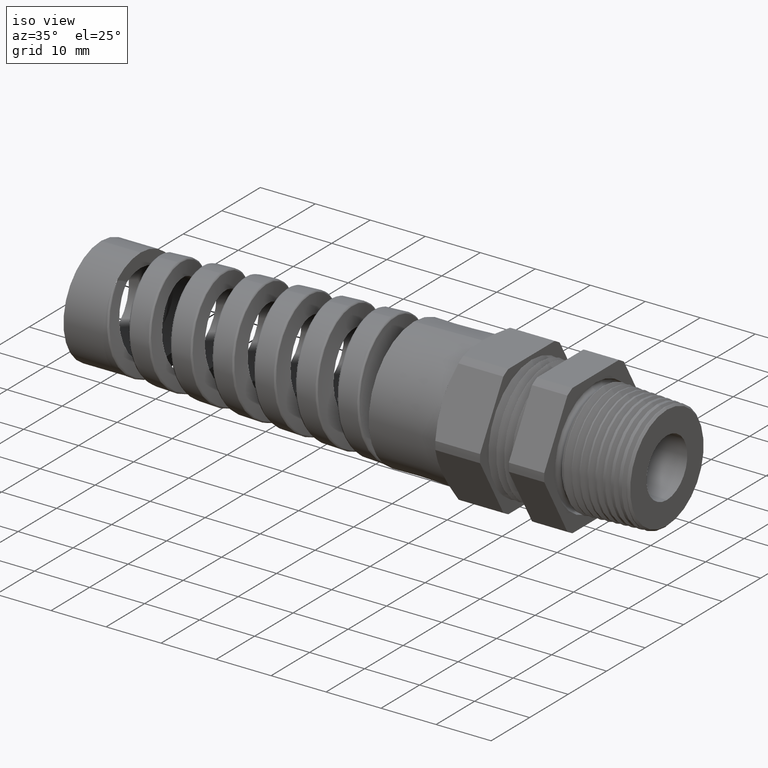
[diagram: clean part render]
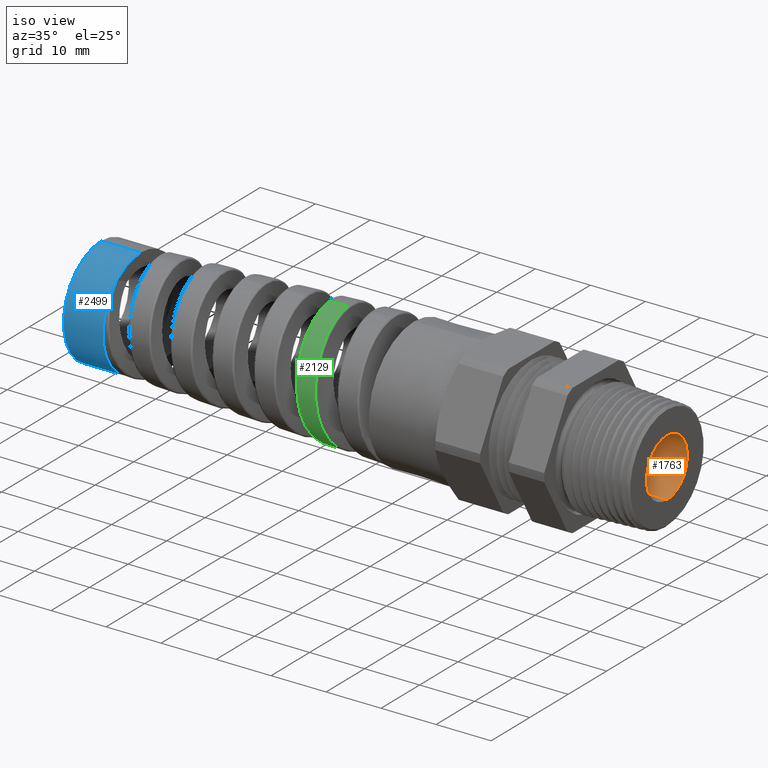
[diagram: same view with three faces highlighted in distinct colors, each labeled with its STEP entity id]
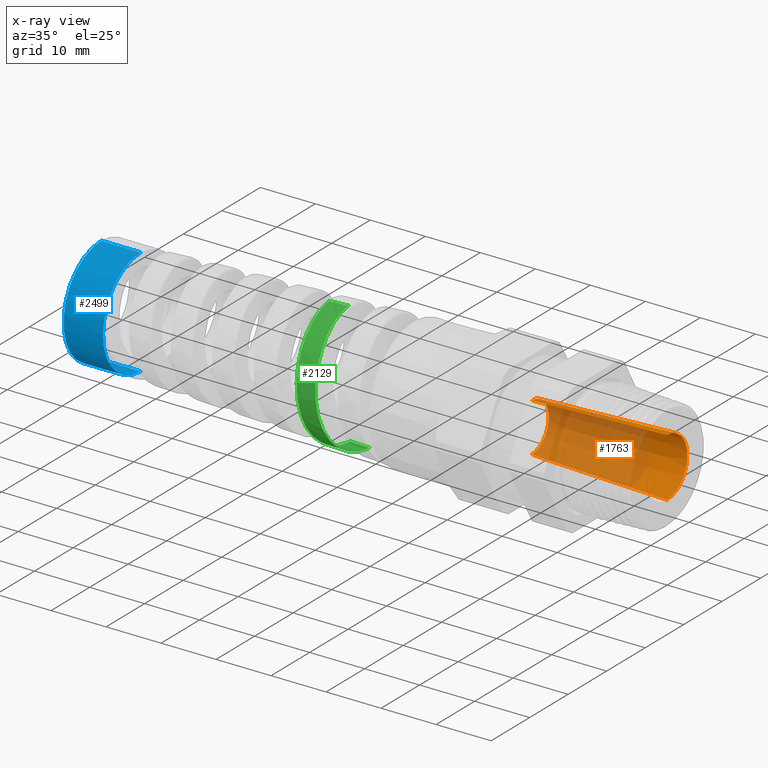
[diagram: x-ray of the same camera — body ghosted, the three highlighted faces saturated]
A machine part, iso view with three faces highlighted in distinct colors.
The next image is the same camera in x-ray (body ghosted, the three faces saturated) — at least one of them is partly hidden behind the body in this view.
Their STEP definitions:

[orange] entity #1763 — the highlighted conical surface has half-angle 2 deg.
#1253 = VERTEX_POINT ( 'NONE', #8768 ) ;
#1254 = VERTEX_POINT ( 'NONE', #8767 ) ;
#1267 = EDGE_CURVE ( 'NONE', #1442, #1253, #8779, .T. ) ;
#1425 = EDGE_CURVE ( 'NONE', #1455, #1254, #9066, .T. ) ;
#1442 = VERTEX_POINT ( 'NONE', #9149 ) ;
#1455 = VERTEX_POINT ( 'NONE', #9193 ) ;
#1756 = EDGE_LOOP ( 'NONE', ( #1761, #1796, #1795, #1791 ) ) ;
#1761 = ORIENTED_EDGE ( 'NONE', *, *, #1425, .F. ) ;
#1763 = ADVANCED_FACE ( 'NONE', ( #9733 ), #9731, .F. ) ;
#1769 = EDGE_CURVE ( 'NONE', #1254, #1253, #9714, .T. ) ;
#1791 = ORIENTED_EDGE ( 'NONE', *, *, #1769, .F. ) ;
#1794 = EDGE_CURVE ( 'NONE', #1455, #1442, #9809, .T. ) ;
#1795 = ORIENTED_EDGE ( 'NONE', *, *, #1267, .T. ) ;
#1796 = ORIENTED_EDGE ( 'NONE', *, *, #1794, .T. ) ;
#8767 = CARTESIAN_POINT ( 'NONE',  ( 0.5100000000000000100, 2.557601921680126100E-017, 0.2088440457657528600 ) ) ;
#8768 = CARTESIAN_POINT ( 'NONE',  ( 0.5100000000000000100, 0.0000000000000000000, -0.2088440457657528600 ) ) ;
#8776 = DIRECTION ( 'NONE',  ( 0.9993908270190957600, 0.0000000000000000000, -0.03489949670250170500 ) ) ;
#8777 = VECTOR ( 'NONE', #8776, 39.37007874015748900 ) ;
#8778 = CARTESIAN_POINT ( 'NONE',  ( -0.4591666666666666700, 0.0000000000000000000, -0.1749999999999999900 ) ) ;
#8779 = LINE ( 'NONE', #8778, #8777 ) ;
#9059 = DIRECTION ( 'NONE',  ( 0.9993908270190957600, 4.273955692857231900E-018, 0.03489949670250170500 ) ) ;
#9060 = VECTOR ( 'NONE', #9059, 39.37007874015748900 ) ;
#9061 = CARTESIAN_POINT ( 'NONE',  ( -0.4591666666666666700, 2.143131898507868000E-017, 0.1749999999999999900 ) ) ;
#9066 = LINE ( 'NONE', #9061, #9060 ) ;
#9149 = CARTESIAN_POINT ( 'NONE',  ( -0.4591666666666666700, 0.0000000000000000000, -0.1749999999999999900 ) ) ;
#9193 = CARTESIAN_POINT ( 'NONE',  ( -0.4591666666666666700, 2.350366910093997000E-017, 0.1749999999999999900 ) ) ;
#9713 = AXIS2_PLACEMENT_3D ( 'NONE', #9777, #9776, #9775 ) ;
#9714 = CIRCLE ( 'NONE', #9713, 0.2088440457657528600 ) ;
#9727 = DIRECTION ( 'NONE',  ( 0.0000000000000000000, 0.0000000000000000000, -1.000000000000000000 ) ) ;
#9728 = DIRECTION ( 'NONE',  ( 1.000000000000000000, 0.0000000000000000000, 0.0000000000000000000 ) ) ;
#9729 = CARTESIAN_POINT ( 'NONE',  ( -0.4591666666666666700, 0.0000000000000000000, 0.0000000000000000000 ) ) ;
#9730 = AXIS2_PLACEMENT_3D ( 'NONE', #9729, #9728, #9727 ) ;
#9731 = CONICAL_SURFACE ( 'NONE', #9730, 0.1749999999999999900, 0.03490658503988732600 ) ;
#9733 = FACE_OUTER_BOUND ( 'NONE', #1756, .T. ) ;
#9775 = DIRECTION ( 'NONE',  ( 0.0000000000000000000, 0.0000000000000000000, 1.000000000000000000 ) ) ;
#9776 = DIRECTION ( 'NONE',  ( -1.000000000000000000, 0.0000000000000000000, 0.0000000000000000000 ) ) ;
#9777 = CARTESIAN_POINT ( 'NONE',  ( 0.5100000000000000100, 0.0000000000000000000, 0.0000000000000000000 ) ) ;
#9802 = DIRECTION ( 'NONE',  ( 0.0000000000000000000, 0.0000000000000000000, 1.000000000000000000 ) ) ;
#9803 = DIRECTION ( 'NONE',  ( -1.000000000000000000, 0.0000000000000000000, 0.0000000000000000000 ) ) ;
#9804 = CARTESIAN_POINT ( 'NONE',  ( -0.4591666666666666700, 0.0000000000000000000, 0.0000000000000000000 ) ) ;
#9805 = AXIS2_PLACEMENT_3D ( 'NONE', #9804, #9803, #9802 ) ;
#9809 = CIRCLE ( 'NONE', #9805, 0.1749999999999999900 ) ;

[blue] entity #2499 — the highlighted cylindrical surface (partial cylindrical patch) has radius 9.7693 mm, axis along (1, 0, 0).
#1492 = VERTEX_POINT ( 'NONE', #9328 ) ;
#1496 = VERTEX_POINT ( 'NONE', #9327 ) ;
#1498 = EDGE_CURVE ( 'NONE', #1517, #1496, #9326, .T. ) ;
#1512 = EDGE_CURVE ( 'NONE', #1492, #1513, #9364, .T. ) ;
#1513 = VERTEX_POINT ( 'NONE', #9360 ) ;
#1517 = VERTEX_POINT ( 'NONE', #9358 ) ;
#2485 = EDGE_CURVE ( 'NONE', #7426, #1496, #11775, .T. ) ;
#2497 = ORIENTED_EDGE ( 'NONE', *, *, #1498, .F. ) ;
#2499 = ADVANCED_FACE ( 'NONE', ( #11810 ), #11809, .T. ) ;
#2501 = EDGE_LOOP ( 'NONE', ( #2497, #2541, #2540, #2529, #2533 ) ) ;
#2505 = EDGE_CURVE ( 'NONE', #1492, #1517, #11859, .T. ) ;
#2529 = ORIENTED_EDGE ( 'NONE', *, *, #7443, .F. ) ;
#2533 = ORIENTED_EDGE ( 'NONE', *, *, #2485, .T. ) ;
#2540 = ORIENTED_EDGE ( 'NONE', *, *, #1512, .T. ) ;
#2541 = ORIENTED_EDGE ( 'NONE', *, *, #2505, .F. ) ;
#5664 = CARTESIAN_POINT ( 'NONE',  ( -3.256800000000000100, -0.2988133339120769300, 0.2421588570577778400 ) ) ;
#5691 = DIRECTION ( 'NONE',  ( 0.0000000000000000000, 0.0000000000000000000, -1.000000000000000000 ) ) ;
#5692 = DIRECTION ( 'NONE',  ( 1.000000000000000000, 0.0000000000000000000, 0.0000000000000000000 ) ) ;
#5693 = CARTESIAN_POINT ( 'NONE',  ( -3.256800000000000100, 0.0000000000000000000, 0.0000000000000000000 ) ) ;
#5694 = AXIS2_PLACEMENT_3D ( 'NONE', #5693, #5692, #5691 ) ;
#5695 = CIRCLE ( 'NONE', #5694, 0.3846171090515572200 ) ;
#7426 = VERTEX_POINT ( 'NONE', #5664 ) ;
#7443 = EDGE_CURVE ( 'NONE', #7426, #1513, #5695, .T. ) ;
#9318 = DIRECTION ( 'NONE',  ( 1.000000000000000000, 0.0000000000000000000, 0.0000000000000000000 ) ) ;
#9319 = VECTOR ( 'NONE', #9318, 39.37007874015748100 ) ;
#9320 = CARTESIAN_POINT ( 'NONE',  ( -3.540000000000000000, 4.710201114973015700E-017, 0.3846171090515601000 ) ) ;
#9326 = LINE ( 'NONE', #9320, #9319 ) ;
#9327 = CARTESIAN_POINT ( 'NONE',  ( -3.256800000000000100, 4.710201114973015700E-017, 0.3846171090515601000 ) ) ;
#9328 = CARTESIAN_POINT ( 'NONE',  ( -3.540000000000000000, 0.0000000000000000000, -0.3846171090515601000 ) ) ;
#9358 = CARTESIAN_POINT ( 'NONE',  ( -3.540000000000000000, 4.710201114973015700E-017, 0.3846171090515601000 ) ) ;
#9360 = CARTESIAN_POINT ( 'NONE',  ( -3.256800000000000100, 0.0000000000000000000, -0.3846171090515572200 ) ) ;
#9361 = DIRECTION ( 'NONE',  ( 1.000000000000000000, 0.0000000000000000000, 0.0000000000000000000 ) ) ;
#9362 = VECTOR ( 'NONE', #9361, 39.37007874015748100 ) ;
#9363 = CARTESIAN_POINT ( 'NONE',  ( -3.540000000000000000, 0.0000000000000000000, -0.3846171090515601000 ) ) ;
#9364 = LINE ( 'NONE', #9363, #9362 ) ;
#11775 = CIRCLE ( 'NONE', #11843, 0.3846171090515601000 ) ;
#11809 = CYLINDRICAL_SURFACE ( 'NONE', #11874, 0.3846171090515601000 ) ;
#11810 = FACE_OUTER_BOUND ( 'NONE', #2501, .T. ) ;
#11840 = DIRECTION ( 'NONE',  ( 0.0000000000000000000, 0.0000000000000000000, 1.000000000000000000 ) ) ;
#11841 = DIRECTION ( 'NONE',  ( -1.000000000000000000, 0.0000000000000000000, 0.0000000000000000000 ) ) ;
#11842 = CARTESIAN_POINT ( 'NONE',  ( -3.256800000000000100, 0.0000000000000000000, 0.0000000000000000000 ) ) ;
#11843 = AXIS2_PLACEMENT_3D ( 'NONE', #11842, #11841, #11840 ) ;
#11855 = DIRECTION ( 'NONE',  ( 0.0000000000000000000, 0.0000000000000000000, 1.000000000000000000 ) ) ;
#11856 = DIRECTION ( 'NONE',  ( -1.000000000000000000, 0.0000000000000000000, 0.0000000000000000000 ) ) ;
#11857 = CARTESIAN_POINT ( 'NONE',  ( -3.540000000000000000, 0.0000000000000000000, 0.0000000000000000000 ) ) ;
#11858 = AXIS2_PLACEMENT_3D ( 'NONE', #11857, #11856, #11855 ) ;
#11859 = CIRCLE ( 'NONE', #11858, 0.3846171090515601000 ) ;
#11871 = DIRECTION ( 'NONE',  ( 0.0000000000000000000, 0.0000000000000000000, -1.000000000000000000 ) ) ;
#11872 = DIRECTION ( 'NONE',  ( 1.000000000000000000, 0.0000000000000000000, 0.0000000000000000000 ) ) ;
#11873 = CARTESIAN_POINT ( 'NONE',  ( -3.540000000000000000, 0.0000000000000000000, 0.0000000000000000000 ) ) ;
#11874 = AXIS2_PLACEMENT_3D ( 'NONE', #11873, #11872, #11871 ) ;

[green] entity #2129 — the highlighted conical surface has half-angle 2.001 deg.
#1783 = EDGE_LOOP ( 'NONE', ( #2210, #2203, #1974, #1981 ) ) ;
#1974 = ORIENTED_EDGE ( 'NONE', *, *, #7216, .T. ) ;
#1981 = ORIENTED_EDGE ( 'NONE', *, *, #2201, .T. ) ;
#2129 = ADVANCED_FACE ( 'NONE', ( #10011 ), #10035, .T. ) ;
#2199 = EDGE_CURVE ( 'NONE', #10084, #7213, #10359, .T. ) ;
#2201 = EDGE_CURVE ( 'NONE', #7226, #9128, #10394, .T. ) ;
#2203 = ORIENTED_EDGE ( 'NONE', *, *, #2199, .T. ) ;
#2210 = ORIENTED_EDGE ( 'NONE', *, *, #10201, .F. ) ;
#3323 = CARTESIAN_POINT ( 'NONE',  ( -1.618032475989623600, 5.500631917215042400E-013, -0.4418615998229139000 ) ) ;
#3382 = DIRECTION ( 'NONE',  ( 0.9993904554178625300, 0.0000000000000000000, -0.03491013634572581700 ) ) ;
#3383 = VECTOR ( 'NONE', #3382, 39.37007874015748900 ) ;
#3384 = CARTESIAN_POINT ( 'NONE',  ( -0.8125000000000001100, 0.0000000000000000000, -0.4699999999999997000 ) ) ;
#3385 = LINE ( 'NONE', #3384, #3383 ) ;
#3392 = CARTESIAN_POINT ( 'NONE',  ( -1.756466864851662400, 9.141279821855957100E-013, -0.4370258888513793800 ) ) ;
#6355 = CARTESIAN_POINT ( 'NONE',  ( -1.770970632171935800, 1.226736973267761600E-016, 0.4365192515386728800 ) ) ;
#6371 = DIRECTION ( 'NONE',  ( 0.9993904554178625300, 4.275258673359080400E-018, 0.03491013634572581700 ) ) ;
#6372 = VECTOR ( 'NONE', #6371, 39.37007874015748900 ) ;
#6373 = CARTESIAN_POINT ( 'NONE',  ( -0.8125000000000001100, 5.755839955992556000E-017, 0.4699999999999997000 ) ) ;
#6374 = LINE ( 'NONE', #6373, #6372 ) ;
#6375 = CARTESIAN_POINT ( 'NONE',  ( -1.909344797049319800, 5.446971398592450800E-013, 0.4316856442769588800 ) ) ;
#7213 = VERTEX_POINT ( 'NONE', #3392 ) ;
#7216 = EDGE_CURVE ( 'NONE', #7213, #7226, #3385, .T. ) ;
#7226 = VERTEX_POINT ( 'NONE', #3323 ) ;
#9128 = VERTEX_POINT ( 'NONE', #6355 ) ;
#10011 = FACE_OUTER_BOUND ( 'NONE', #1783, .T. ) ;
#10031 = DIRECTION ( 'NONE',  ( 0.0000000000000000000, 0.0000000000000000000, -1.000000000000000000 ) ) ;
#10032 = DIRECTION ( 'NONE',  ( 1.000000000000000000, 0.0000000000000000000, 0.0000000000000000000 ) ) ;
#10033 = CARTESIAN_POINT ( 'NONE',  ( -0.8125000000000001100, 0.0000000000000000000, 0.0000000000000000000 ) ) ;
#10034 = AXIS2_PLACEMENT_3D ( 'NONE', #10033, #10032, #10031 ) ;
#10035 = CONICAL_SURFACE ( 'NONE', #10034, 0.4699999999999997000, 0.03491723117042447300 ) ;
#10084 = VERTEX_POINT ( 'NONE', #6375 ) ;
#10201 = EDGE_CURVE ( 'NONE', #10084, #9128, #6374, .T. ) ;
#10302 = CARTESIAN_POINT ( 'NONE',  ( -1.777030480012591800, -0.1791413649043472300, -0.3980868764574109800 ) ) ;
#10303 = CARTESIAN_POINT ( 'NONE',  ( -1.778611569984488000, -0.1919749823838498000, -0.3920021146790798100 ) ) ;
#10305 = CARTESIAN_POINT ( 'NONE',  ( -1.781798240979416600, -0.2171490764562210900, -0.3785092071881437400 ) ) ;
#10307 = CARTESIAN_POINT ( 'NONE',  ( -1.783403930168921300, -0.2294846122083147000, -0.3710919426019007000 ) ) ;
#10308 = CARTESIAN_POINT ( 'NONE',  ( -1.788174447003067800, -0.2649362235548704500, -0.3473369159463035000 ) ) ;
#10310 = CARTESIAN_POINT ( 'NONE',  ( -1.791329535319777800, -0.2867971976944475600, -0.3293679804487016900 ) ) ;
#10311 = CARTESIAN_POINT ( 'NONE',  ( -1.796093808941568800, -0.3169315758773386700, -0.2992320799389751600 ) ) ;
#10312 = CARTESIAN_POINT ( 'NONE',  ( -1.797693915722145200, -0.3265715999440825200, -0.2886013070090033800 ) ) ;
#10314 = CARTESIAN_POINT ( 'NONE',  ( -1.800888102276631900, -0.3447228489584713300, -0.2664745597817851900 ) ) ;
#10315 = CARTESIAN_POINT ( 'NONE',  ( -1.802472719098831900, -0.3531875877395125300, -0.2550467289818034700 ) ) ;
#10316 = CARTESIAN_POINT ( 'NONE',  ( -1.807214924545039700, -0.3768004554497316700, -0.2197037038109750700 ) ) ;
#10318 = CARTESIAN_POINT ( 'NONE',  ( -1.810360743038703600, -0.3901838602693111200, -0.1947388343035554300 ) ) ;
#10319 = CARTESIAN_POINT ( 'NONE',  ( -1.815155459511051100, -0.4066199180691368300, -0.1551400709054772400 ) ) ;
#10320 = CARTESIAN_POINT ( 'NONE',  ( -1.816763347616399300, -0.4114682870915651900, -0.1416017826767274300 ) ) ;
#10322 = CARTESIAN_POINT ( 'NONE',  ( -1.819949509478670600, -0.4197310966413717600, -0.1143950364889762300 ) ) ;
#10323 = CARTESIAN_POINT ( 'NONE',  ( -1.823123488836771800, -0.4266230561365636500, -0.08691487322160897100 ) ) ;
#10324 = CARTESIAN_POINT ( 'NONE',  ( -1.826299509331886600, -0.4308113840285225400, -0.05889846229540348500 ) ) ;
#10325 = CARTESIAN_POINT ( 'NONE',  ( -1.829487586449134700, -0.4336284598340096600, -0.03061133820781978800 ) ) ;
#10326 = CARTESIAN_POINT ( 'NONE',  ( -1.831095257207476800, -0.4343500765033592700, -0.01625630028452849600 ) ) ;
#10327 = CARTESIAN_POINT ( 'NONE',  ( -1.835896147340532200, -0.4343759145635602300, 0.02663225349579416100 ) ) ;
#10328 = CARTESIAN_POINT ( 'NONE',  ( -1.839048381921643000, -0.4315966681585977100, 0.05482415232752769300 ) ) ;
#10329 = CARTESIAN_POINT ( 'NONE',  ( -1.843805568305576700, -0.4233434998178952600, 0.09651580052246119800 ) ) ;
#10330 = CARTESIAN_POINT ( 'NONE',  ( -1.845396032624044400, -0.4199069118201177500, 0.1103129588330778500 ) ) ;
#10332 = CARTESIAN_POINT ( 'NONE',  ( -1.848603488765135200, -0.4116217332604422100, 0.1376992780592025100 ) ) ;
#10333 = CARTESIAN_POINT ( 'NONE',  ( -1.850212468884774500, -0.4067867353302471200, 0.1512167649050474000 ) ) ;
#10334 = CARTESIAN_POINT ( 'NONE',  ( -1.854999899559913700, -0.3904814240956232500, 0.1905955887046045500 ) ) ;
#10335 = CARTESIAN_POINT ( 'NONE',  ( -1.858170611327559300, -0.3771518155311698300, 0.2155571212199270700 ) ) ;
#10336 = CARTESIAN_POINT ( 'NONE',  ( -1.862970999278881400, -0.3534564174263783400, 0.2510469851537391900 ) ) ;
#10337 = CARTESIAN_POINT ( 'NONE',  ( -1.864586371563505400, -0.3448834757939234200, 0.2626101622407450700 ) ) ;
#10338 = CARTESIAN_POINT ( 'NONE',  ( -1.867792749888396200, -0.3267559298125825600, 0.2846791761564006500 ) ) ;
#10340 = CARTESIAN_POINT ( 'NONE',  ( -1.869384303782194700, -0.3172085476126027000, 0.2951928298066564500 ) ) ;
#10341 = CARTESIAN_POINT ( 'NONE',  ( -1.874149621464037400, -0.2871534581378221700, 0.3252079388909664400 ) ) ;
#10342 = CARTESIAN_POINT ( 'NONE',  ( -1.877313688962024300, -0.2652463381339459900, 0.3431982271807889100 ) ) ;
#10344 = CARTESIAN_POINT ( 'NONE',  ( -1.882143324041224200, -0.2294862376272867900, 0.3670354855777162600 ) ) ;
#10345 = CARTESIAN_POINT ( 'NONE',  ( -1.883751705433856200, -0.2171924196544242300, 0.3743716346501279000 ) ) ;
#10346 = CARTESIAN_POINT ( 'NONE',  ( -1.886948586089284300, -0.1921277588297162200, 0.3877073522820809700 ) ) ;
#10348 = CARTESIAN_POINT ( 'NONE',  ( -1.888542272208296300, -0.1793183809855843900, 0.3937328079452907500 ) ) ;
#10349 = CARTESIAN_POINT ( 'NONE',  ( -1.891734149188804400, -0.1531521706718632400, 0.4045103282552750000 ) ) ;
#10351 = CARTESIAN_POINT ( 'NONE',  ( -1.893332317265987300, -0.1397953502194236300, 0.4092624273529538700 ) ) ;
#10353 = CARTESIAN_POINT ( 'NONE',  ( -1.896545323031927600, -0.1125249307118412600, 0.4174680838361549700 ) ) ;
#10354 = CARTESIAN_POINT ( 'NONE',  ( -1.898167709988452600, -0.09853826594035458600, 0.4209314910389868000 ) ) ;
#10355 = CARTESIAN_POINT ( 'NONE',  ( -1.902985179073547500, -0.05654966388727679400, 0.4291386457832913100 ) ) ;
#10356 = CARTESIAN_POINT ( 'NONE',  ( -1.906153011430107300, -0.02836546389699862900, 0.4317971379084865600 ) ) ;
#10358 = CARTESIAN_POINT ( 'NONE',  ( -1.909344797049319800, 5.446971398592450800E-013, 0.4316856442769588800 ) ) ;
#10359 = B_SPLINE_CURVE_WITH_KNOTS ( 'NONE', 3,
 ( #10358, #10356, #10355, #10354, #10353, #10351, #10349, #10348, #10346, #10345, #10344, #10342, #10341, #10340, #10338, #10337, #10336, #10335, #10334, #10333, #10332, #10330, #10329, #10328, #10327, #10326, #10325, #10324, #10323, #10322, #10320, #10319, #10318, #10316, #10315, #10314, #10312, #10311, #10310, #10308, #10307, #10305, #10303, #10302, #10415, #10414, #10413, #10411, #10409, #10408, #10406 ),
 .UNSPECIFIED., .F., .F.,
 ( 4, 2, 2, 2, 2, 2, 2, 2, 2, 2, 2, 2, 2, 2, 1, 2, 2, 2, 2, 2, 2, 2, 2, 2, 2, 4 ),
 ( 0.2904489710185549900, 0.2926407408213493300, 0.2937366257227465000, 0.2948325106241436700, 0.2959283955255407900, 0.2970242804269379600, 0.2992160502297323000, 0.3003119351311294700, 0.3014078200325265900, 0.3035995898353209300, 0.3046954747367181000, 0.3057913596381152700, 0.3079831294409096100, 0.3090790143423067800, 0.3101748992437038900, 0.3112707841451010600, 0.3123666690464982400, 0.3145584388492925800, 0.3156543237506896900, 0.3167502086520868600, 0.3189419784548812000, 0.3200378633562783700, 0.3211337482576755400, 0.3233255180604698300, 0.3244214029618670000, 0.3255172878632641700 ),
 .UNSPECIFIED. ) ;
#10363 = CARTESIAN_POINT ( 'NONE',  ( -1.683120339295291100, -0.4278782880140683000, -0.1018038543487040800 ) ) ;
#10364 = CARTESIAN_POINT ( 'NONE',  ( -1.681518677341855600, -0.4243465704129820200, -0.1158713854971680900 ) ) ;
#10365 = CARTESIAN_POINT ( 'NONE',  ( -1.678320725785767700, -0.4159154336032457300, -0.1435575799156110500 ) ) ;
#10367 = CARTESIAN_POINT ( 'NONE',  ( -1.676734497827823400, -0.4110495282116605200, -0.1570900991697688800 ) ) ;
#10368 = CARTESIAN_POINT ( 'NONE',  ( -1.671987727032477900, -0.3945602570483249800, -0.1967812174650223300 ) ) ;
#10369 = CARTESIAN_POINT ( 'NONE',  ( -1.668838979047115200, -0.3810629506685278000, -0.2220418170108733600 ) ) ;
#10370 = CARTESIAN_POINT ( 'NONE',  ( -1.664042672553621300, -0.3569713248729699500, -0.2580778624851419200 ) ) ;
#10371 = CARTESIAN_POINT ( 'NONE',  ( -1.662434683926596200, -0.3483026328204764100, -0.2697504464617875300 ) ) ;
#10372 = CARTESIAN_POINT ( 'NONE',  ( -1.659250208966316600, -0.3300524766126548000, -0.2919646574746693200 ) ) ;
#10374 = CARTESIAN_POINT ( 'NONE',  ( -1.657665021871172400, -0.3204285510890774700, -0.3025728589757872800 ) ) ;
#10375 = CARTESIAN_POINT ( 'NONE',  ( -1.654496831975764900, -0.3001985160911568300, -0.3228051257578651900 ) ) ;
#10376 = CARTESIAN_POINT ( 'NONE',  ( -1.652914186426430700, -0.2895923675583939000, -0.3324292081115298700 ) ) ;
#10377 = CARTESIAN_POINT ( 'NONE',  ( -1.649740140957231000, -0.2673853426235413000, -0.3506789418821258900 ) ) ;
#10378 = CARTESIAN_POINT ( 'NONE',  ( -1.648139139661686700, -0.2557203109273193400, -0.3593458743551918900 ) ) ;
#10379 = CARTESIAN_POINT ( 'NONE',  ( -1.643359371293303500, -0.2196762782154120200, -0.3834562725739925600 ) ) ;
#10381 = CARTESIAN_POINT ( 'NONE',  ( -1.640221387196566100, -0.1944166918143129800, -0.3969637388281811500 ) ) ;
#10382 = CARTESIAN_POINT ( 'NONE',  ( -1.635486316837051900, -0.1547426141255612300, -0.4134769173874227600 ) ) ;
#10384 = CARTESIAN_POINT ( 'NONE',  ( -1.633903413436447000, -0.1412183629139924500, -0.4183522545374176400 ) ) ;
#10385 = CARTESIAN_POINT ( 'NONE',  ( -1.630712313094972300, -0.1135550602185450100, -0.4268077791968696900 ) ) ;
#10387 = CARTESIAN_POINT ( 'NONE',  ( -1.629111558905266000, -0.09947914888983057400, -0.4303604293044444600 ) ) ;
#10389 = CARTESIAN_POINT ( 'NONE',  ( -1.624351365107725500, -0.05722673476652091800, -0.4388590902917146000 ) ) ;
#10390 = CARTESIAN_POINT ( 'NONE',  ( -1.621202017293175600, -0.02876033614477322600, -0.4417508832171820900 ) ) ;
#10391 = CARTESIAN_POINT ( 'NONE',  ( -1.618032475989623600, 5.500631917215042400E-013, -0.4418615998229139000 ) ) ;
#10394 = B_SPLINE_CURVE_WITH_KNOTS ( 'NONE', 3,
 ( #10391, #10390, #10389, #10387, #10385, #10384, #10382, #10381, #10379, #10378, #10377, #10376, #10375, #10374, #10372, #10371, #10370, #10369, #10368, #10367, #10365, #10364, #10363, #10474, #10472, #10471, #10469, #10468, #10466, #10464, #10463, #10461, #10460, #10459, #10458, #10457, #10456, #10455, #10454, #10452, #10451, #10450, #10449, #10448, #10447, #10445, #10443, #10442 ),
 .UNSPECIFIED., .F., .F.,
 ( 4, 2, 2, 2, 2, 2, 2, 2, 2, 2, 2, 2, 2, 2, 2, 2, 2, 2, 2, 2, 2, 2, 2, 4 ),
 ( 0.07515214852286614100, 0.07737657447609269700, 0.07848878745270597400, 0.07960100042931925200, 0.08182542638254582100, 0.08293763935915909900, 0.08404985233577237600, 0.08516206531238565400, 0.08627427828899893200, 0.08849870424222547300, 0.08961091721883875100, 0.09072313019545202900, 0.09294755614867858400, 0.09405976912529184800, 0.09517198210190512500, 0.09739640805513168100, 0.09962083400835822200, 0.1007330469849715100, 0.1018452599615847800, 0.1040696859148113300, 0.1062941118680378700, 0.1085185378212644200, 0.1096307507978776800, 0.1107429637744909600 ),
 .UNSPECIFIED. ) ;
#10406 = CARTESIAN_POINT ( 'NONE',  ( -1.756466864851662400, 9.141279821855957100E-013, -0.4370258888513793800 ) ) ;
#10408 = CARTESIAN_POINT ( 'NONE',  ( -1.758045945804801000, -0.01414894851901606600, -0.4369707292978269900 ) ) ;
#10409 = CARTESIAN_POINT ( 'NONE',  ( -1.759624094196492000, -0.02828790335561045400, -0.4362300992845505900 ) ) ;
#10411 = CARTESIAN_POINT ( 'NONE',  ( -1.762788397902222700, -0.05654449264677786900, -0.4333624923957060700 ) ) ;
#10413 = CARTESIAN_POINT ( 'NONE',  ( -1.764381853006180100, -0.07071571113648285300, -0.4312242809274811100 ) ) ;
#10414 = CARTESIAN_POINT ( 'NONE',  ( -1.769162498856010400, -0.1128249679871597400, -0.4227232194033070900 ) ) ;
#10415 = CARTESIAN_POINT ( 'NONE',  ( -1.772299536969450100, -0.1399221817542627400, -0.4144059406405381500 ) ) ;
#10442 = CARTESIAN_POINT ( 'NONE',  ( -1.770970632171935800, 1.226736973267761600E-016, 0.4365192515386728800 ) ) ;
#10443 = CARTESIAN_POINT ( 'NONE',  ( -1.769375631187557700, -0.01430663177439729800, 0.4365749672016895300 ) ) ;
#10445 = CARTESIAN_POINT ( 'NONE',  ( -1.767778625211838800, -0.02862444167288652800, 0.4359291259476708600 ) ) ;
#10447 = CARTESIAN_POINT ( 'NONE',  ( -1.764565343215945200, -0.05728111164412189000, 0.4332094957247333300 ) ) ;
#10448 = CARTESIAN_POINT ( 'NONE',  ( -1.762940425037326000, -0.07169534194380657000, 0.4311169641651872400 ) ) ;
#10449 = CARTESIAN_POINT ( 'NONE',  ( -1.758107733742552100, -0.1141545473696101400, 0.4227793654418438600 ) ) ;
#10450 = CARTESIAN_POINT ( 'NONE',  ( -1.754930225187176300, -0.1415601845890144000, 0.4145137061122964900 ) ) ;
#10451 = CARTESIAN_POINT ( 'NONE',  ( -1.748551705823526900, -0.1945914651213384300, 0.3926701947594722900 ) ) ;
#10452 = CARTESIAN_POINT ( 'NONE',  ( -1.745319177855912100, -0.2204137587994786700, 0.3789101826844558700 ) ) ;
#10454 = CARTESIAN_POINT ( 'NONE',  ( -1.738946966610189100, -0.2681392581373116000, 0.3470609000296222500 ) ) ;
#10455 = CARTESIAN_POINT ( 'NONE',  ( -1.735781460659829400, -0.2902814446499730200, 0.3289245132571125300 ) ) ;
#10456 = CARTESIAN_POINT ( 'NONE',  ( -1.730968741172951100, -0.3208703027723544500, 0.2983637208131507700 ) ) ;
#10457 = CARTESIAN_POINT ( 'NONE',  ( -1.729347926755067500, -0.3306548807934819900, 0.2875679030052009600 ) ) ;
#10458 = CARTESIAN_POINT ( 'NONE',  ( -1.726139487495672600, -0.3489200468415280500, 0.2652940529238816400 ) ) ;
#10459 = CARTESIAN_POINT ( 'NONE',  ( -1.724544316119876800, -0.3574524913126172500, 0.2537714654983567200 ) ) ;
#10460 = CARTESIAN_POINT ( 'NONE',  ( -1.719768773224406200, -0.3812840686597800400, 0.2180711975022332200 ) ) ;
#10461 = CARTESIAN_POINT ( 'NONE',  ( -1.716593810764122300, -0.3948639347676195000, 0.1927004440359640100 ) ) ;
#10463 = CARTESIAN_POINT ( 'NONE',  ( -1.710172268997509200, -0.4170025779606238400, 0.1391279087242720500 ) ) ;
#10464 = CARTESIAN_POINT ( 'NONE',  ( -1.707014420460432500, -0.4252674081623945000, 0.1116769837912404100 ) ) ;
#10466 = CARTESIAN_POINT ( 'NONE',  ( -1.702254777354478700, -0.4336103788911299100, 0.06955111190726791200 ) ) ;
#10468 = CARTESIAN_POINT ( 'NONE',  ( -1.700664615189968000, -0.4357107600397007700, 0.05534973470692388500 ) ) ;
#10469 = CARTESIAN_POINT ( 'NONE',  ( -1.697461326887939500, -0.4385167910901609500, 0.02662207034135935900 ) ) ;
#10471 = CARTESIAN_POINT ( 'NONE',  ( -1.695846428276275500, -0.4392129580431058400, 0.01207969072161460700 ) ) ;
#10472 = CARTESIAN_POINT ( 'NONE',  ( -1.691052316008314600, -0.4391537137872337200, -0.03108038010437209600 ) ) ;
#10474 = CARTESIAN_POINT ( 'NONE',  ( -1.687888981266488800, -0.4363137445176379900, -0.05955261883329912600 ) ) ;